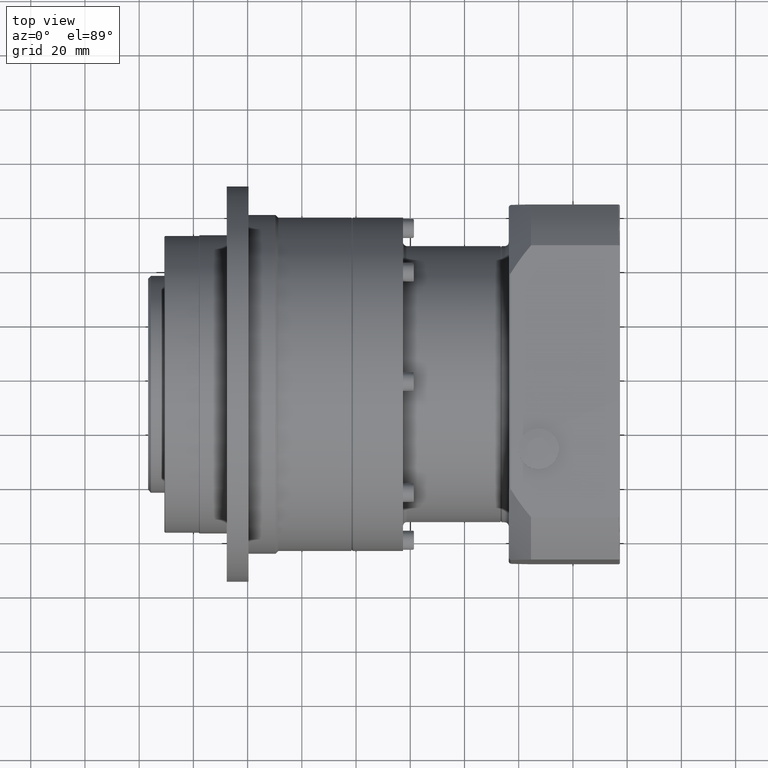
[diagram: clean part render]
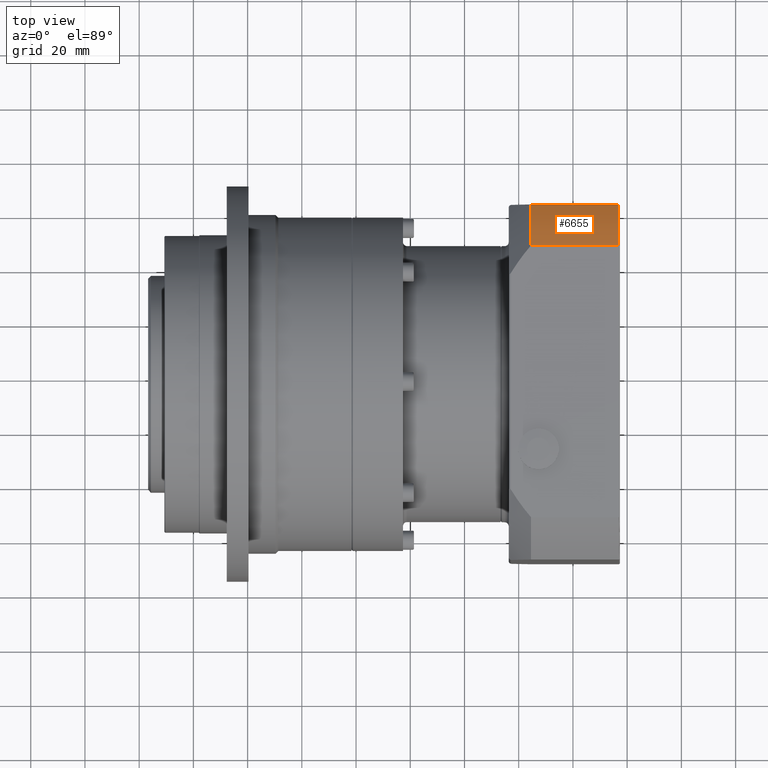
[diagram: same view with one face highlighted and labeled with its STEP entity id]
A machine part, top view. The second image highlights one B-rep face of the part: STEP entity #6655.
In plain terms, the highlighted cylindrical surface (partial cylindrical patch) has radius 82.5 mm, axis along (-1, -0, -0).
Its self-contained STEP definition (entity closure, byte-faithful):
#318=LINE('',#11177,#595);
#320=LINE('',#11185,#597);
#595=VECTOR('',#9010,32.2644831780048);
#597=VECTOR('',#9018,32.2644831780048);
#1683=FACE_OUTER_BOUND('',#2384,.T.);
#2384=EDGE_LOOP('',(#5387,#5388,#5389,#5390));
#2879=CIRCLE('',#7414,82.5);
#2893=CIRCLE('',#7440,82.5);
#3381=VERTEX_POINT('',#11039);
#3386=VERTEX_POINT('',#11153);
#3389=VERTEX_POINT('',#11176);
#3392=VERTEX_POINT('',#11183);
#4086=EDGE_CURVE('',#3386,#3381,#2879,.T.);
#4089=EDGE_CURVE('',#3381,#3389,#318,.T.);
#4093=EDGE_CURVE('',#3392,#3386,#320,.T.);
#4121=EDGE_CURVE('',#3392,#3389,#2893,.T.);
#5387=ORIENTED_EDGE('',*,*,#4121,.T.);
#5388=ORIENTED_EDGE('',*,*,#4089,.F.);
#5389=ORIENTED_EDGE('',*,*,#4086,.F.);
#5390=ORIENTED_EDGE('',*,*,#4093,.F.);
#5949=CYLINDRICAL_SURFACE('',#7439,82.5);
#6655=ADVANCED_FACE('',(#1683),#5949,.T.);
#7414=AXIS2_PLACEMENT_3D('',#11170,#9003,#9004);
#7439=AXIS2_PLACEMENT_3D('',#11382,#9066,#9067);
#7440=AXIS2_PLACEMENT_3D('',#11383,#9068,#9069);
#9003=DIRECTION('center_axis',(1.,9.76631733469955E-15,9.03213527489685E-15));
#9004=DIRECTION('ref_axis',(-1.32925133160959E-14,0.707106781236057,0.707106781137039));
#9010=DIRECTION('',(-1.,-9.76631733469955E-15,-9.03213527489685E-15));
#9018=DIRECTION('',(1.,9.76631733469955E-15,9.03213527489685E-15));
#9066=DIRECTION('center_axis',(-1.,-9.76631733469955E-15,-9.03213527489685E-15));
#9067=DIRECTION('ref_axis',(9.03213527558065E-15,-7.00162378316795E-11,
-1.));
#9068=DIRECTION('center_axis',(1.,9.76631733469955E-15,9.03213527489685E-15));
#9069=DIRECTION('ref_axis',(9.03213527558065E-15,-7.00162378316795E-11,
-1.));
#11039=CARTESIAN_POINT('',(76.8083725161918,-32.3571138109861,138.999100737755));
#11153=CARTESIAN_POINT('',(76.8083725161918,-17.0168586279979,123.658845552619));
#11170=CARTESIAN_POINT('Origin',(76.8083725161929,-82.5168586315099,73.4991007412673));
#11176=CARTESIAN_POINT('',(44.543889338187,-32.3571138109864,138.999100737755));
#11177=CARTESIAN_POINT('',(77.3083725161918,-32.357113810986,138.999100737755));
#11183=CARTESIAN_POINT('',(44.543889338187,-17.0168586279982,123.658845552619));
#11185=CARTESIAN_POINT('',(77.3083725161918,-17.0168586279979,123.658845552619));
#11382=CARTESIAN_POINT('Origin',(77.3083725161929,-82.5168586315099,73.4991007412674));
#11383=CARTESIAN_POINT('Origin',(44.5438893381881,-82.5168586315102,73.4991007412671));